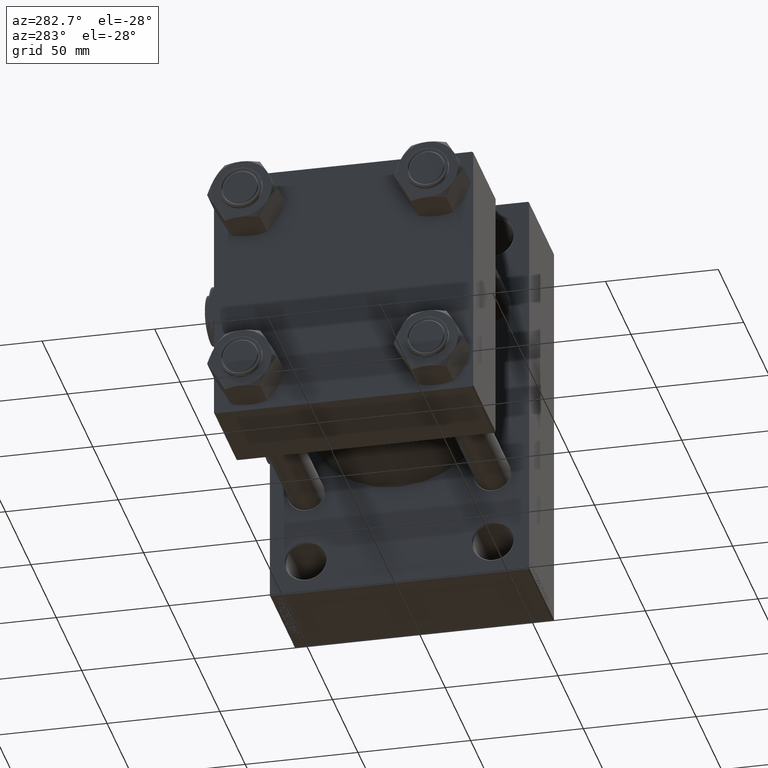
[diagram: clean part render]
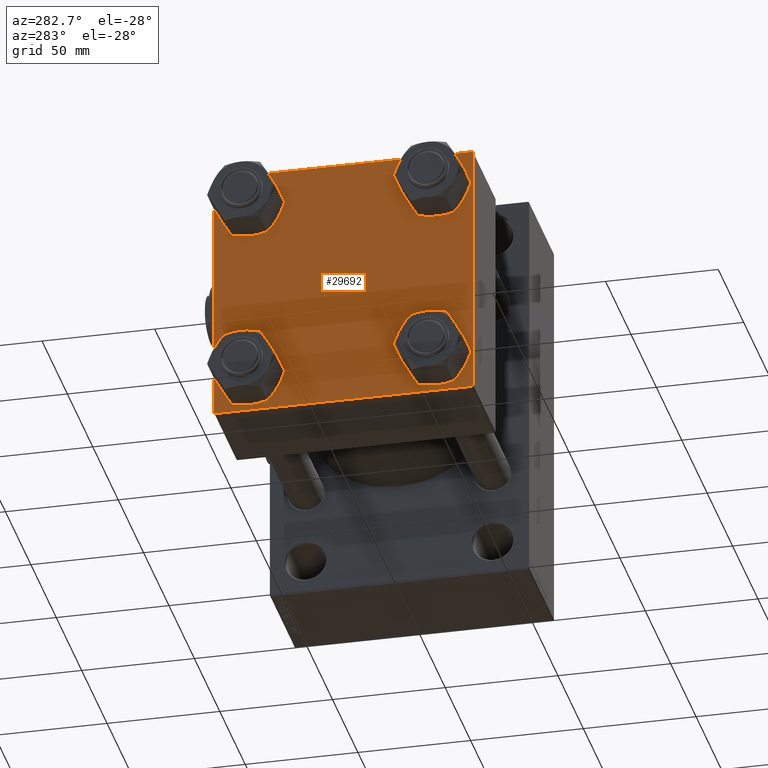
[diagram: same view with one face highlighted and labeled with its STEP entity id]
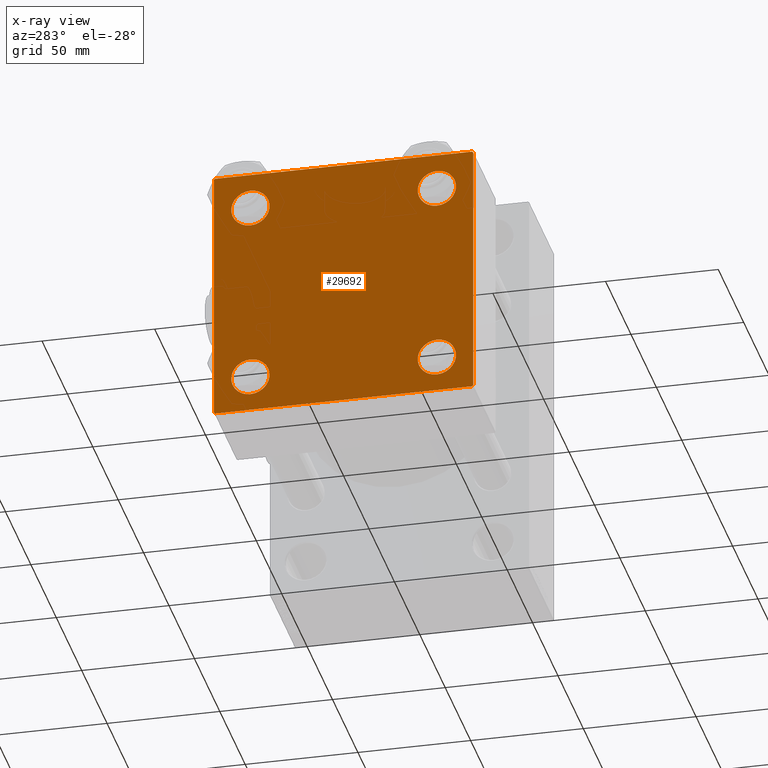
[diagram: x-ray of the same camera — body ghosted, the highlighted face saturated]
A machine part, auxiliary view. The second image highlights one B-rep face of the part: STEP entity #29692.
The next image is the same camera in x-ray: the body ghosted, the highlighted face saturated — about 0% of this face is hidden behind the body in this view.
In plain terms, the highlighted planar face has unit normal (-1, 0, 0).
Its self-contained STEP definition (entity closure, byte-faithful):
#177 = CARTESIAN_POINT ( 'NONE',  ( 0.000000000000000000, 57.49999999999999289, -57.00000000000000711 ) ) ;
#287 = DIRECTION ( 'NONE',  ( -0.000000000000000000, 0.7071067811865376918, 0.7071067811865573427 ) ) ;
#349 = AXIS2_PLACEMENT_3D ( 'NONE', #30159, #30414, #42004 ) ;
#1146 = DIRECTION ( 'NONE',  ( 0.000000000000000000, 0.000000000000000000, 1.000000000000000000 ) ) ;
#1177 = VERTEX_POINT ( 'NONE', #32932 ) ;
#1256 = DIRECTION ( 'NONE',  ( 1.000000000000000000, -0.000000000000000000, 0.000000000000000000 ) ) ;
#1318 = CARTESIAN_POINT ( 'NONE',  ( 0.000000000000000000, -41.34999999999998721, -49.85000000000000853 ) ) ;
#1408 = VERTEX_POINT ( 'NONE', #21101 ) ;
#1524 = CARTESIAN_POINT ( 'NONE',  ( 0.000000000000000000, -41.34999999999998721, 49.85000000000000853 ) ) ;
#2114 = EDGE_CURVE ( 'NONE', #25606, #36233, #29278, .T. ) ;
#2510 = VERTEX_POINT ( 'NONE', #177 ) ;
#3188 = ORIENTED_EDGE ( 'NONE', *, *, #37203, .T. ) ;
#3294 = ORIENTED_EDGE ( 'NONE', *, *, #13293, .T. ) ;
#3375 = VERTEX_POINT ( 'NONE', #34504 ) ;
#3457 = EDGE_CURVE ( 'NONE', #4211, #2510, #8045, .T. ) ;
#3792 = CARTESIAN_POINT ( 'NONE',  ( 0.000000000000000000, -41.34999999999998721, -41.35000000000000853 ) ) ;
#3951 = CIRCLE ( 'NONE', #14416, 8.499999999999992895 ) ;
#4058 = VERTEX_POINT ( 'NONE', #18966 ) ;
#4211 = VERTEX_POINT ( 'NONE', #39378 ) ;
#4640 = CIRCLE ( 'NONE', #27946, 8.499999999999992895 ) ;
#5203 = CARTESIAN_POINT ( 'NONE',  ( 0.000000000000000000, -57.00000000000003553, 57.49999999999999289 ) ) ;
#5285 = EDGE_CURVE ( 'NONE', #32118, #29258, #37360, .T. ) ;
#5613 = VECTOR ( 'NONE', #28100, 1000.000000000000114 ) ;
#6752 = FACE_BOUND ( 'NONE', #27318, .T. ) ;
#6799 = LINE ( 'NONE', #37530, #12995 ) ;
#7085 = LINE ( 'NONE', #42346, #15277 ) ;
#7396 = EDGE_CURVE ( 'NONE', #15735, #4058, #17545, .T. ) ;
#7496 = FACE_BOUND ( 'NONE', #18883, .T. ) ;
#7786 = CIRCLE ( 'NONE', #27101, 8.499999999999992895 ) ;
#7973 = ORIENTED_EDGE ( 'NONE', *, *, #2114, .F. ) ;
#8045 = LINE ( 'NONE', #16338, #10959 ) ;
#8773 = CARTESIAN_POINT ( 'NONE',  ( 0.000000000000000000, 57.00000000000000711, 57.50000000000000711 ) ) ;
#9792 = ORIENTED_EDGE ( 'NONE', *, *, #40454, .T. ) ;
#10364 = EDGE_LOOP ( 'NONE', ( #18938, #10847 ) ) ;
#10507 = ORIENTED_EDGE ( 'NONE', *, *, #7396, .T. ) ;
#10608 = ORIENTED_EDGE ( 'NONE', *, *, #3457, .T. ) ;
#10847 = ORIENTED_EDGE ( 'NONE', *, *, #12436, .T. ) ;
#10959 = VECTOR ( 'NONE', #46076, 1000.000000000000000 ) ;
#11494 = EDGE_CURVE ( 'NONE', #4058, #15735, #49709, .T. ) ;
#11559 = LINE ( 'NONE', #19138, #23259 ) ;
#12333 = DIRECTION ( 'NONE',  ( 1.000000000000000000, -0.000000000000000000, 0.000000000000000000 ) ) ;
#12436 = EDGE_CURVE ( 'NONE', #48393, #3375, #26466, .T. ) ;
#12995 = VECTOR ( 'NONE', #33016, 1000.000000000000000 ) ;
#13293 = EDGE_CURVE ( 'NONE', #35361, #29258, #11559, .T. ) ;
#14416 = AXIS2_PLACEMENT_3D ( 'NONE', #46013, #18588, #19089 ) ;
#14443 = EDGE_CURVE ( 'NONE', #37955, #14853, #3951, .T. ) ;
#14737 = CARTESIAN_POINT ( 'NONE',  ( 0.000000000000000000, 41.34999999999999432, 49.85000000000000142 ) ) ;
#14853 = VERTEX_POINT ( 'NONE', #14737 ) ;
#15145 = AXIS2_PLACEMENT_3D ( 'NONE', #47830, #12333, #16617 ) ;
#15277 = VECTOR ( 'NONE', #287, 1000.000000000000114 ) ;
#15735 = VERTEX_POINT ( 'NONE', #42677 ) ;
#15784 = AXIS2_PLACEMENT_3D ( 'NONE', #26154, #49807, #34207 ) ;
#16338 = CARTESIAN_POINT ( 'NONE',  ( 0.000000000000000000, 57.49999999999999289, 57.50000000000000711 ) ) ;
#16617 = DIRECTION ( 'NONE',  ( 0.000000000000000000, 0.000000000000000000, 1.000000000000000000 ) ) ;
#17239 = CIRCLE ( 'NONE', #349, 8.499999999999992895 ) ;
#17366 = VECTOR ( 'NONE', #43635, 1000.000000000000000 ) ;
#17545 = CIRCLE ( 'NONE', #15145, 8.499999999999992895 ) ;
#17679 = ORIENTED_EDGE ( 'NONE', *, *, #32047, .T. ) ;
#18359 = PLANE ( 'NONE',  #15784 ) ;
#18588 = DIRECTION ( 'NONE',  ( 1.000000000000000000, -0.000000000000000000, 0.000000000000000000 ) ) ;
#18883 = EDGE_LOOP ( 'NONE', ( #10507, #29866 ) ) ;
#18938 = ORIENTED_EDGE ( 'NONE', *, *, #44869, .T. ) ;
#18954 = EDGE_CURVE ( 'NONE', #1408, #35361, #6799, .T. ) ;
#18966 = CARTESIAN_POINT ( 'NONE',  ( 0.000000000000000000, 41.34999999999999432, -49.85000000000000142 ) ) ;
#19089 = DIRECTION ( 'NONE',  ( 0.000000000000000000, 0.000000000000000000, 1.000000000000000000 ) ) ;
#19138 = CARTESIAN_POINT ( 'NONE',  ( 0.000000000000000000, -57.25000000000000711, -57.25000000000000711 ) ) ;
#19812 = DIRECTION ( 'NONE',  ( 1.000000000000000000, -0.000000000000000000, 0.000000000000000000 ) ) ;
#19991 = AXIS2_PLACEMENT_3D ( 'NONE', #26960, #47065, #39268 ) ;
#20411 = CARTESIAN_POINT ( 'NONE',  ( 0.000000000000000000, -41.34999999999998721, 41.35000000000000853 ) ) ;
#20873 = ORIENTED_EDGE ( 'NONE', *, *, #41329, .T. ) ;
#21101 = CARTESIAN_POINT ( 'NONE',  ( 0.000000000000000000, 57.00000000000002132, -57.49999999999999289 ) ) ;
#21765 = EDGE_LOOP ( 'NONE', ( #10608, #20873, #28557, #3294, #44781, #9792, #7973, #31183 ) ) ;
#22938 = DIRECTION ( 'NONE',  ( 0.000000000000000000, 0.000000000000000000, 1.000000000000000000 ) ) ;
#23259 = VECTOR ( 'NONE', #38512, 1000.000000000000114 ) ;
#23868 = ORIENTED_EDGE ( 'NONE', *, *, #25842, .T. ) ;
#25606 = VERTEX_POINT ( 'NONE', #8773 ) ;
#25842 = EDGE_CURVE ( 'NONE', #1177, #39999, #17239, .T. ) ;
#26154 = CARTESIAN_POINT ( 'NONE',  ( 0.000000000000000000, 0.000000000000000000, 0.000000000000000000 ) ) ;
#26224 = DIRECTION ( 'NONE',  ( 1.000000000000000000, -0.000000000000000000, 0.000000000000000000 ) ) ;
#26405 = FACE_BOUND ( 'NONE', #10364, .T. ) ;
#26466 = CIRCLE ( 'NONE', #29668, 8.499999999999992895 ) ;
#26923 = CARTESIAN_POINT ( 'NONE',  ( 0.000000000000000000, 57.24999999999922551, 57.25000000000081712 ) ) ;
#26960 = CARTESIAN_POINT ( 'NONE',  ( 0.000000000000000000, 41.34999999999999432, -41.35000000000000142 ) ) ;
#27101 = AXIS2_PLACEMENT_3D ( 'NONE', #35649, #19812, #1146 ) ;
#27318 = EDGE_LOOP ( 'NONE', ( #17679, #44972 ) ) ;
#27862 = EDGE_CURVE ( 'NONE', #25606, #4211, #33977, .T. ) ;
#27946 = AXIS2_PLACEMENT_3D ( 'NONE', #20411, #1256, #43060 ) ;
#27997 = CARTESIAN_POINT ( 'NONE',  ( 0.000000000000000000, -57.50000000000000711, -57.00000000000000711 ) ) ;
#28100 = DIRECTION ( 'NONE',  ( -0.000000000000000000, -0.7071067811865376918, -0.7071067811865573427 ) ) ;
#28557 = ORIENTED_EDGE ( 'NONE', *, *, #18954, .T. ) ;
#29258 = VERTEX_POINT ( 'NONE', #27997 ) ;
#29278 = LINE ( 'NONE', #44630, #17366 ) ;
#29668 = AXIS2_PLACEMENT_3D ( 'NONE', #3792, #26224, #22938 ) ;
#29692 = ADVANCED_FACE ( 'NONE', ( #48814, #26405, #7496, #6752, #34459 ), #18359, .T. ) ;
#29866 = ORIENTED_EDGE ( 'NONE', *, *, #11494, .T. ) ;
#30159 = CARTESIAN_POINT ( 'NONE',  ( 0.000000000000000000, -41.34999999999998721, 41.35000000000000853 ) ) ;
#30414 = DIRECTION ( 'NONE',  ( 1.000000000000000000, -0.000000000000000000, 0.000000000000000000 ) ) ;
#31027 = DIRECTION ( 'NONE',  ( 1.000000000000000000, -0.000000000000000000, 0.000000000000000000 ) ) ;
#31183 = ORIENTED_EDGE ( 'NONE', *, *, #27862, .T. ) ;
#31274 = CARTESIAN_POINT ( 'NONE',  ( 0.000000000000000000, -41.34999999999998721, -41.35000000000000853 ) ) ;
#31352 = EDGE_LOOP ( 'NONE', ( #3188, #23868 ) ) ;
#31943 = VECTOR ( 'NONE', #48438, 1000.000000000000000 ) ;
#32047 = EDGE_CURVE ( 'NONE', #14853, #37955, #7786, .T. ) ;
#32118 = VERTEX_POINT ( 'NONE', #47224 ) ;
#32932 = CARTESIAN_POINT ( 'NONE',  ( 0.000000000000000000, -41.34999999999998721, 32.85000000000001563 ) ) ;
#33016 = DIRECTION ( 'NONE',  ( 0.000000000000000000, -1.000000000000000000, -1.206764157201257045E-16 ) ) ;
#33394 = VECTOR ( 'NONE', #49322, 1000.000000000000114 ) ;
#33827 = CARTESIAN_POINT ( 'NONE',  ( 0.000000000000000000, -57.50000000000000711, 57.49999999999999289 ) ) ;
#33884 = AXIS2_PLACEMENT_3D ( 'NONE', #31274, #31027, #38838 ) ;
#33977 = LINE ( 'NONE', #26923, #33394 ) ;
#34207 = DIRECTION ( 'NONE',  ( -0.000000000000000000, 0.000000000000000000, 1.000000000000000000 ) ) ;
#34459 = FACE_OUTER_BOUND ( 'NONE', #21765, .T. ) ;
#34504 = CARTESIAN_POINT ( 'NONE',  ( 0.000000000000000000, -41.34999999999998721, -32.85000000000001563 ) ) ;
#35361 = VERTEX_POINT ( 'NONE', #48009 ) ;
#35649 = CARTESIAN_POINT ( 'NONE',  ( 0.000000000000000000, 41.34999999999999432, 41.35000000000000142 ) ) ;
#36233 = VERTEX_POINT ( 'NONE', #5203 ) ;
#36915 = LINE ( 'NONE', #40188, #5613 ) ;
#37203 = EDGE_CURVE ( 'NONE', #39999, #1177, #4640, .T. ) ;
#37360 = LINE ( 'NONE', #33827, #31943 ) ;
#37530 = CARTESIAN_POINT ( 'NONE',  ( 0.000000000000000000, 57.49999999999999289, -57.49999999999999289 ) ) ;
#37955 = VERTEX_POINT ( 'NONE', #45416 ) ;
#38512 = DIRECTION ( 'NONE',  ( 0.000000000000000000, -0.7071067811865474617, 0.7071067811865474617 ) ) ;
#38838 = DIRECTION ( 'NONE',  ( 0.000000000000000000, 0.000000000000000000, 1.000000000000000000 ) ) ;
#39268 = DIRECTION ( 'NONE',  ( 0.000000000000000000, 0.000000000000000000, 1.000000000000000000 ) ) ;
#39378 = CARTESIAN_POINT ( 'NONE',  ( 0.000000000000000000, 57.49999999999999289, 57.00000000000003553 ) ) ;
#39999 = VERTEX_POINT ( 'NONE', #1524 ) ;
#40188 = CARTESIAN_POINT ( 'NONE',  ( 0.000000000000000000, 57.25000000000081712, -57.24999999999922551 ) ) ;
#40454 = EDGE_CURVE ( 'NONE', #32118, #36233, #7085, .T. ) ;
#41329 = EDGE_CURVE ( 'NONE', #2510, #1408, #36915, .T. ) ;
#42004 = DIRECTION ( 'NONE',  ( 0.000000000000000000, 0.000000000000000000, 1.000000000000000000 ) ) ;
#42346 = CARTESIAN_POINT ( 'NONE',  ( -0.000000000000000000, -57.25000000000081712, 57.24999999999922551 ) ) ;
#42677 = CARTESIAN_POINT ( 'NONE',  ( 0.000000000000000000, 41.34999999999999432, -32.85000000000000853 ) ) ;
#43060 = DIRECTION ( 'NONE',  ( 0.000000000000000000, 0.000000000000000000, 1.000000000000000000 ) ) ;
#43635 = DIRECTION ( 'NONE',  ( 0.000000000000000000, -1.000000000000000000, -1.206764157201257045E-16 ) ) ;
#44630 = CARTESIAN_POINT ( 'NONE',  ( 0.000000000000000000, 57.49999999999999289, 57.50000000000000711 ) ) ;
#44781 = ORIENTED_EDGE ( 'NONE', *, *, #5285, .F. ) ;
#44869 = EDGE_CURVE ( 'NONE', #3375, #48393, #49142, .T. ) ;
#44972 = ORIENTED_EDGE ( 'NONE', *, *, #14443, .T. ) ;
#45416 = CARTESIAN_POINT ( 'NONE',  ( 0.000000000000000000, 41.34999999999999432, 32.85000000000000853 ) ) ;
#46013 = CARTESIAN_POINT ( 'NONE',  ( 0.000000000000000000, 41.34999999999999432, 41.35000000000000142 ) ) ;
#46076 = DIRECTION ( 'NONE',  ( 0.000000000000000000, 0.000000000000000000, -1.000000000000000000 ) ) ;
#47065 = DIRECTION ( 'NONE',  ( 1.000000000000000000, -0.000000000000000000, 0.000000000000000000 ) ) ;
#47224 = CARTESIAN_POINT ( 'NONE',  ( 0.000000000000000000, -57.50000000000000711, 57.00000000000000711 ) ) ;
#47830 = CARTESIAN_POINT ( 'NONE',  ( 0.000000000000000000, 41.34999999999999432, -41.35000000000000142 ) ) ;
#48009 = CARTESIAN_POINT ( 'NONE',  ( 0.000000000000000000, -57.00000000000000711, -57.50000000000000711 ) ) ;
#48393 = VERTEX_POINT ( 'NONE', #1318 ) ;
#48438 = DIRECTION ( 'NONE',  ( 0.000000000000000000, 0.000000000000000000, -1.000000000000000000 ) ) ;
#48814 = FACE_BOUND ( 'NONE', #31352, .T. ) ;
#49142 = CIRCLE ( 'NONE', #33884, 8.499999999999992895 ) ;
#49322 = DIRECTION ( 'NONE',  ( 0.000000000000000000, 0.7071067811865573427, -0.7071067811865376918 ) ) ;
#49709 = CIRCLE ( 'NONE', #19991, 8.499999999999992895 ) ;
#49807 = DIRECTION ( 'NONE',  ( -1.000000000000000000, 0.000000000000000000, -0.000000000000000000 ) ) ;